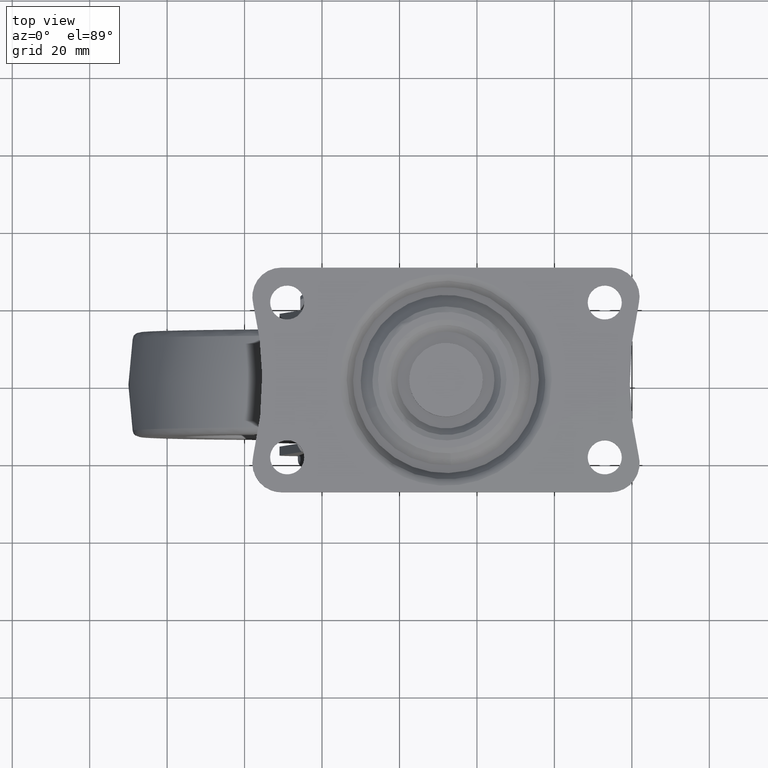
[diagram: clean part render]
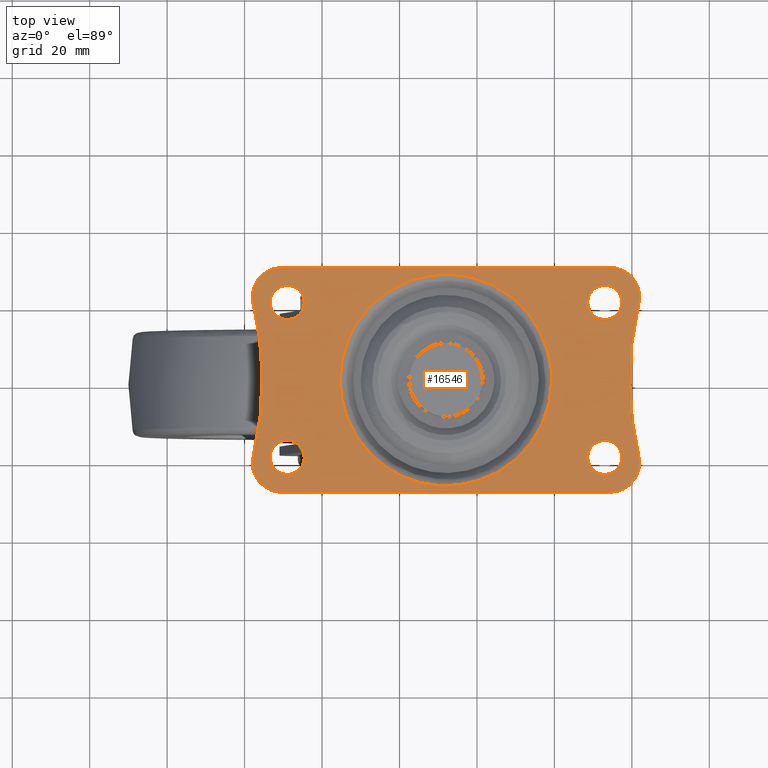
[diagram: same view with one face highlighted and labeled with its STEP entity id]
A machine part, top view. The second image highlights one B-rep face of the part: STEP entity #16546.
In plain terms, the highlighted face is a freeform B-spline surface patch.
Its self-contained STEP definition (entity closure, byte-faithful):
#12485=CARTESIAN_POINT('',(-9.345220021310645,-24.386436268417238,71.999999999999986));
#12486=VERTEX_POINT('',#12485);
#12492=CARTESIAN_POINT('',(-4.599999999999800,-20.0,72.0));
#12493=VERTEX_POINT('',#12492);
#12494=CARTESIAN_POINT('',(-9.345220021310645,-24.386436268417238,71.999999999999986));
#12495=CARTESIAN_POINT('',(-9.172876470942377,-24.400000000000006,72.000000000000014));
#12496=CARTESIAN_POINT('',(-8.999999999999799,-24.399999999999999,72.0));
#12497=CARTESIAN_POINT('',(-4.599999999999800,-24.400000000000002,72.0));
#12498=CARTESIAN_POINT('',(-4.599999999999800,-20.0,72.0));
#12506=(BOUNDED_CURVE()B_SPLINE_CURVE(2,(#12494,#12495,#12496,#12497,#12498),.UNSPECIFIED.,.F.,.U.)B_SPLINE_CURVE_WITH_KNOTS((3,2,3),(0.736331300624300,0.750000000000000,1.0),.UNSPECIFIED.)CURVE()GEOMETRIC_REPRESENTATION_ITEM()RATIONAL_B_SPLINE_CURVE((0.969723356154145,0.983986122571431,1.0,0.707106781186548,1.0))REPRESENTATION_ITEM(''));
#12507=EDGE_CURVE('',#12486,#12493,#12506,.T.);
#12509=CARTESIAN_POINT('',(-8.654779978688953,-15.613563731582760,72.0));
#12510=VERTEX_POINT('',#12509);
#12511=CARTESIAN_POINT('',(-4.599999999999800,-20.0,72.0));
#12512=CARTESIAN_POINT('',(-4.599999999999800,-15.932681836905394,72.0));
#12513=CARTESIAN_POINT('',(-8.654779978688953,-15.613563731582767,72.0));
#12521=(BOUNDED_CURVE()B_SPLINE_CURVE(2,(#12511,#12512,#12513),.UNSPECIFIED.,.F.,.U.)B_SPLINE_CURVE_WITH_KNOTS((3,3),(0.0,0.236331300624300),.UNSPECIFIED.)CURVE()GEOMETRIC_REPRESENTATION_ITEM()RATIONAL_B_SPLINE_CURVE((1.0,0.723120658615116,0.969723356154146))REPRESENTATION_ITEM(''));
#12522=EDGE_CURVE('',#12493,#12510,#12521,.T.);
#12568=CARTESIAN_POINT('',(-13.399999999999800,-20.0,72.0));
#12569=VERTEX_POINT('',#12568);
#12570=CARTESIAN_POINT('',(-8.654779978688953,-15.613563731582762,72.0));
#12571=CARTESIAN_POINT('',(-8.827123529057223,-15.600000000000005,72.0));
#12572=CARTESIAN_POINT('',(-8.999999999999799,-15.600000000000000,72.0));
#12573=CARTESIAN_POINT('',(-13.399999999999801,-15.599999999999996,72.0));
#12574=CARTESIAN_POINT('',(-13.399999999999800,-20.0,72.0));
#12582=(BOUNDED_CURVE()B_SPLINE_CURVE(2,(#12570,#12571,#12572,#12573,#12574),.UNSPECIFIED.,.F.,.U.)B_SPLINE_CURVE_WITH_KNOTS((3,2,3),(0.236331300624300,0.250000000000000,0.500000000000000),.UNSPECIFIED.)CURVE()GEOMETRIC_REPRESENTATION_ITEM()RATIONAL_B_SPLINE_CURVE((0.969723356154146,0.983986122571431,1.0,0.707106781186548,1.0))REPRESENTATION_ITEM(''));
#12583=EDGE_CURVE('',#12510,#12569,#12582,.T.);
#12585=CARTESIAN_POINT('',(-13.399999999999800,-20.0,72.0));
#12586=CARTESIAN_POINT('',(-13.399999999999801,-24.067318163094594,72.0));
#12587=CARTESIAN_POINT('',(-9.345220021310645,-24.386436268417242,71.999999999999986));
#12595=(BOUNDED_CURVE()B_SPLINE_CURVE(2,(#12585,#12586,#12587),.UNSPECIFIED.,.F.,.U.)B_SPLINE_CURVE_WITH_KNOTS((3,3),(0.500000000000000,0.736331300624300),.UNSPECIFIED.)CURVE()GEOMETRIC_REPRESENTATION_ITEM()RATIONAL_B_SPLINE_CURVE((1.0,0.723120658615117,0.969723356154145))REPRESENTATION_ITEM(''));
#12596=EDGE_CURVE('',#12569,#12486,#12595,.T.);
#12667=CARTESIAN_POINT('',(72.654779978689163,-24.386436268417238,72.0));
#12668=VERTEX_POINT('',#12667);
#12674=CARTESIAN_POINT('',(77.399999999999991,-20.0,72.0));
#12675=VERTEX_POINT('',#12674);
#12676=CARTESIAN_POINT('',(72.654779978689163,-24.386436268417235,72.0));
#12677=CARTESIAN_POINT('',(72.827123529057431,-24.400000000000006,72.0));
#12678=CARTESIAN_POINT('',(73.0,-24.399999999999999,72.0));
#12679=CARTESIAN_POINT('',(77.399999999999991,-24.400000000000002,72.0));
#12680=CARTESIAN_POINT('',(77.399999999999991,-20.0,72.0));
#12688=(BOUNDED_CURVE()B_SPLINE_CURVE(2,(#12676,#12677,#12678,#12679,#12680),.UNSPECIFIED.,.F.,.U.)B_SPLINE_CURVE_WITH_KNOTS((3,2,3),(0.736331300624300,0.750000000000000,1.0),.UNSPECIFIED.)CURVE()GEOMETRIC_REPRESENTATION_ITEM()RATIONAL_B_SPLINE_CURVE((0.969723356154147,0.983986122571432,1.0,0.707106781186548,1.0))REPRESENTATION_ITEM(''));
#12689=EDGE_CURVE('',#12668,#12675,#12688,.T.);
#12691=CARTESIAN_POINT('',(73.345220021310837,-15.613563731582760,72.0));
#12692=VERTEX_POINT('',#12691);
#12693=CARTESIAN_POINT('',(77.399999999999991,-20.0,72.0));
#12694=CARTESIAN_POINT('',(77.399999999999991,-15.932681836905395,72.000000000000014));
#12695=CARTESIAN_POINT('',(73.345220021310837,-15.613563731582765,72.0));
#12703=(BOUNDED_CURVE()B_SPLINE_CURVE(2,(#12693,#12694,#12695),.UNSPECIFIED.,.F.,.U.)B_SPLINE_CURVE_WITH_KNOTS((3,3),(0.0,0.236331300624300),.UNSPECIFIED.)CURVE()GEOMETRIC_REPRESENTATION_ITEM()RATIONAL_B_SPLINE_CURVE((1.0,0.723120658615116,0.969723356154146))REPRESENTATION_ITEM(''));
#12704=EDGE_CURVE('',#12675,#12692,#12703,.T.);
#12750=CARTESIAN_POINT('',(68.599999999999994,-20.0,72.0));
#12751=VERTEX_POINT('',#12750);
#12752=CARTESIAN_POINT('',(73.345220021310837,-15.613563731582763,72.0));
#12753=CARTESIAN_POINT('',(73.172876470942569,-15.600000000000001,72.0));
#12754=CARTESIAN_POINT('',(73.0,-15.600000000000000,72.0));
#12755=CARTESIAN_POINT('',(68.599999999999994,-15.599999999999996,72.0));
#12756=CARTESIAN_POINT('',(68.599999999999994,-20.0,72.0));
#12764=(BOUNDED_CURVE()B_SPLINE_CURVE(2,(#12752,#12753,#12754,#12755,#12756),.UNSPECIFIED.,.F.,.U.)B_SPLINE_CURVE_WITH_KNOTS((3,2,3),(0.236331300624300,0.250000000000000,0.500000000000000),.UNSPECIFIED.)CURVE()GEOMETRIC_REPRESENTATION_ITEM()RATIONAL_B_SPLINE_CURVE((0.969723356154146,0.983986122571431,1.0,0.707106781186548,1.0))REPRESENTATION_ITEM(''));
#12765=EDGE_CURVE('',#12692,#12751,#12764,.T.);
#12767=CARTESIAN_POINT('',(68.599999999999994,-20.0,72.0));
#12768=CARTESIAN_POINT('',(68.599999999999980,-24.067318163094594,72.0));
#12769=CARTESIAN_POINT('',(72.654779978689163,-24.386436268417231,72.0));
#12777=(BOUNDED_CURVE()B_SPLINE_CURVE(2,(#12767,#12768,#12769),.UNSPECIFIED.,.F.,.U.)B_SPLINE_CURVE_WITH_KNOTS((3,3),(0.500000000000000,0.736331300624300),.UNSPECIFIED.)CURVE()GEOMETRIC_REPRESENTATION_ITEM()RATIONAL_B_SPLINE_CURVE((1.0,0.723120658615117,0.969723356154145))REPRESENTATION_ITEM(''));
#12778=EDGE_CURVE('',#12751,#12668,#12777,.T.);
#12849=CARTESIAN_POINT('',(-9.345220021310643,15.613563731582760,72.0));
#12850=VERTEX_POINT('',#12849);
#12856=CARTESIAN_POINT('',(-4.599999999999800,20.0,72.0));
#12857=VERTEX_POINT('',#12856);
#12858=CARTESIAN_POINT('',(-9.345220021310643,15.613563731582756,72.0));
#12859=CARTESIAN_POINT('',(-9.172876470942374,15.600000000000003,72.0));
#12860=CARTESIAN_POINT('',(-8.999999999999799,15.600000000000000,72.0));
#12861=CARTESIAN_POINT('',(-4.599999999999800,15.599999999999996,72.0));
#12862=CARTESIAN_POINT('',(-4.599999999999800,20.0,72.0));
#12870=(BOUNDED_CURVE()B_SPLINE_CURVE(2,(#12858,#12859,#12860,#12861,#12862),.UNSPECIFIED.,.F.,.U.)B_SPLINE_CURVE_WITH_KNOTS((3,2,3),(0.736331300624300,0.750000000000000,1.0),.UNSPECIFIED.)CURVE()GEOMETRIC_REPRESENTATION_ITEM()RATIONAL_B_SPLINE_CURVE((0.969723356154146,0.983986122571431,1.0,0.707106781186548,1.0))REPRESENTATION_ITEM(''));
#12871=EDGE_CURVE('',#12850,#12857,#12870,.T.);
#12873=CARTESIAN_POINT('',(-8.654779978688953,24.386436268417238,72.0));
#12874=VERTEX_POINT('',#12873);
#12875=CARTESIAN_POINT('',(-4.599999999999800,20.0,72.0));
#12876=CARTESIAN_POINT('',(-4.599999999999800,24.067318163094598,72.0));
#12877=CARTESIAN_POINT('',(-8.654779978688953,24.386436268417235,72.0));
#12885=(BOUNDED_CURVE()B_SPLINE_CURVE(2,(#12875,#12876,#12877),.UNSPECIFIED.,.F.,.U.)B_SPLINE_CURVE_WITH_KNOTS((3,3),(0.0,0.236331300624300),.UNSPECIFIED.)CURVE()GEOMETRIC_REPRESENTATION_ITEM()RATIONAL_B_SPLINE_CURVE((1.0,0.723120658615116,0.969723356154146))REPRESENTATION_ITEM(''));
#12886=EDGE_CURVE('',#12857,#12874,#12885,.T.);
#12932=CARTESIAN_POINT('',(-13.399999999999800,20.0,72.0));
#12933=VERTEX_POINT('',#12932);
#12934=CARTESIAN_POINT('',(-8.654779978688953,24.386436268417235,72.0));
#12935=CARTESIAN_POINT('',(-8.827123529057221,24.400000000000002,72.0));
#12936=CARTESIAN_POINT('',(-8.999999999999799,24.399999999999999,72.0));
#12937=CARTESIAN_POINT('',(-13.399999999999801,24.400000000000002,72.0));
#12938=CARTESIAN_POINT('',(-13.399999999999800,20.0,72.0));
#12946=(BOUNDED_CURVE()B_SPLINE_CURVE(2,(#12934,#12935,#12936,#12937,#12938),.UNSPECIFIED.,.F.,.U.)B_SPLINE_CURVE_WITH_KNOTS((3,2,3),(0.236331300624300,0.250000000000000,0.500000000000000),.UNSPECIFIED.)CURVE()GEOMETRIC_REPRESENTATION_ITEM()RATIONAL_B_SPLINE_CURVE((0.969723356154146,0.983986122571431,1.0,0.707106781186548,1.0))REPRESENTATION_ITEM(''));
#12947=EDGE_CURVE('',#12874,#12933,#12946,.T.);
#12949=CARTESIAN_POINT('',(-13.399999999999800,20.0,72.0));
#12950=CARTESIAN_POINT('',(-13.399999999999801,15.932681836905406,72.0));
#12951=CARTESIAN_POINT('',(-9.345220021310643,15.613563731582765,72.0));
#12959=(BOUNDED_CURVE()B_SPLINE_CURVE(2,(#12949,#12950,#12951),.UNSPECIFIED.,.F.,.U.)B_SPLINE_CURVE_WITH_KNOTS((3,3),(0.500000000000000,0.736331300624300),.UNSPECIFIED.)CURVE()GEOMETRIC_REPRESENTATION_ITEM()RATIONAL_B_SPLINE_CURVE((1.0,0.723120658615117,0.969723356154145))REPRESENTATION_ITEM(''));
#12960=EDGE_CURVE('',#12933,#12850,#12959,.T.);
#13031=CARTESIAN_POINT('',(72.654779978689163,15.613563731582760,72.0));
#13032=VERTEX_POINT('',#13031);
#13038=CARTESIAN_POINT('',(77.399999999999991,20.0,72.0));
#13039=VERTEX_POINT('',#13038);
#13040=CARTESIAN_POINT('',(72.654779978689163,15.613563731582767,72.0));
#13041=CARTESIAN_POINT('',(72.827123529057431,15.599999999999996,72.0));
#13042=CARTESIAN_POINT('',(73.0,15.600000000000000,72.0));
#13043=CARTESIAN_POINT('',(77.399999999999991,15.599999999999996,72.0));
#13044=CARTESIAN_POINT('',(77.399999999999991,20.0,72.0));
#13052=(BOUNDED_CURVE()B_SPLINE_CURVE(2,(#13040,#13041,#13042,#13043,#13044),.UNSPECIFIED.,.F.,.U.)B_SPLINE_CURVE_WITH_KNOTS((3,2,3),(0.736331300624300,0.750000000000000,1.0),.UNSPECIFIED.)CURVE()GEOMETRIC_REPRESENTATION_ITEM()RATIONAL_B_SPLINE_CURVE((0.969723356154147,0.983986122571432,1.0,0.707106781186548,1.0))REPRESENTATION_ITEM(''));
#13053=EDGE_CURVE('',#13032,#13039,#13052,.T.);
#13055=CARTESIAN_POINT('',(73.345220021310851,24.386436268417238,72.0));
#13056=VERTEX_POINT('',#13055);
#13057=CARTESIAN_POINT('',(77.399999999999991,20.0,72.0));
#13058=CARTESIAN_POINT('',(77.399999999999991,24.067318163094601,72.0));
#13059=CARTESIAN_POINT('',(73.345220021310851,24.386436268417238,72.0));
#13067=(BOUNDED_CURVE()B_SPLINE_CURVE(2,(#13057,#13058,#13059),.UNSPECIFIED.,.F.,.U.)B_SPLINE_CURVE_WITH_KNOTS((3,3),(0.0,0.236331300624300),.UNSPECIFIED.)CURVE()GEOMETRIC_REPRESENTATION_ITEM()RATIONAL_B_SPLINE_CURVE((1.0,0.723120658615116,0.969723356154146))REPRESENTATION_ITEM(''));
#13068=EDGE_CURVE('',#13039,#13056,#13067,.T.);
#13114=CARTESIAN_POINT('',(68.599999999999994,20.0,72.0));
#13115=VERTEX_POINT('',#13114);
#13116=CARTESIAN_POINT('',(73.345220021310851,24.386436268417238,72.0));
#13117=CARTESIAN_POINT('',(73.172876470942583,24.400000000000009,72.0));
#13118=CARTESIAN_POINT('',(73.0,24.399999999999999,72.0));
#13119=CARTESIAN_POINT('',(68.599999999999994,24.400000000000002,72.0));
#13120=CARTESIAN_POINT('',(68.599999999999994,20.0,72.0));
#13128=(BOUNDED_CURVE()B_SPLINE_CURVE(2,(#13116,#13117,#13118,#13119,#13120),.UNSPECIFIED.,.F.,.U.)B_SPLINE_CURVE_WITH_KNOTS((3,2,3),(0.236331300624300,0.250000000000000,0.500000000000000),.UNSPECIFIED.)CURVE()GEOMETRIC_REPRESENTATION_ITEM()RATIONAL_B_SPLINE_CURVE((0.969723356154146,0.983986122571431,1.0,0.707106781186548,1.0))REPRESENTATION_ITEM(''));
#13129=EDGE_CURVE('',#13056,#13115,#13128,.T.);
#13131=CARTESIAN_POINT('',(68.599999999999994,20.0,72.0));
#13132=CARTESIAN_POINT('',(68.599999999999980,15.932681836905406,72.0));
#13133=CARTESIAN_POINT('',(72.654779978689163,15.613563731582765,72.0));
#13141=(BOUNDED_CURVE()B_SPLINE_CURVE(2,(#13131,#13132,#13133),.UNSPECIFIED.,.F.,.U.)B_SPLINE_CURVE_WITH_KNOTS((3,3),(0.500000000000000,0.736331300624300),.UNSPECIFIED.)CURVE()GEOMETRIC_REPRESENTATION_ITEM()RATIONAL_B_SPLINE_CURVE((1.0,0.723120658615117,0.969723356154145))REPRESENTATION_ITEM(''));
#13142=EDGE_CURVE('',#13115,#13032,#13141,.T.);
#14025=CARTESIAN_POINT('',(17.354768338814399,-23.077192448521050,72.0));
#14026=VERTEX_POINT('',#14025);
#14040=CARTESIAN_POINT('',(59.332025576020200,0.0,72.0));
#14041=VERTEX_POINT('',#14040);
#14042=CARTESIAN_POINT('',(59.332025576020200,0.0,72.0));
#14043=CARTESIAN_POINT('',(59.332025576020193,-27.332025576020207,72.0));
#14044=CARTESIAN_POINT('',(32.0,-27.332025576020200,72.0));
#14045=CARTESIAN_POINT('',(24.059312521086532,-27.332025576020200,72.0));
#14046=CARTESIAN_POINT('',(17.354768338814402,-23.077192448521053,72.000000000000014));
#14054=(BOUNDED_CURVE()B_SPLINE_CURVE(2,(#14042,#14043,#14044,#14045,#14046),.UNSPECIFIED.,.F.,.U.)B_SPLINE_CURVE_WITH_KNOTS((3,2,3),(0.0,0.250000000000000,0.341683542670410),.UNSPECIFIED.)CURVE()GEOMETRIC_REPRESENTATION_ITEM()RATIONAL_B_SPLINE_CURVE((1.0,0.707106781186547,1.0,0.892586048300173,0.863956829592893))REPRESENTATION_ITEM(''));
#14055=EDGE_CURVE('',#14041,#14026,#14054,.T.);
#14057=CARTESIAN_POINT('',(8.922807551286528,14.645231661301169,72.0));
#14058=VERTEX_POINT('',#14057);
#14059=CARTESIAN_POINT('',(8.922807551286528,14.645231661301171,72.0));
#14060=CARTESIAN_POINT('',(16.974091785959267,27.332025576020200,71.999999999999986));
#14061=CARTESIAN_POINT('',(32.0,27.332025576020200,72.0));
#14062=CARTESIAN_POINT('',(59.332025576020193,27.332025576020207,72.0));
#14063=CARTESIAN_POINT('',(59.332025576020200,0.0,72.0));
#14071=(BOUNDED_CURVE()B_SPLINE_CURVE(2,(#14059,#14060,#14061,#14062,#14063),.UNSPECIFIED.,.F.,.U.)B_SPLINE_CURVE_WITH_KNOTS((3,2,3),(0.591683542670348,0.750000000000000,1.0),.UNSPECIFIED.)CURVE()GEOMETRIC_REPRESENTATION_ITEM()RATIONAL_B_SPLINE_CURVE((0.863956829592931,0.814520732886303,1.0,0.707106781186547,1.0))REPRESENTATION_ITEM(''));
#14072=EDGE_CURVE('',#14058,#14041,#14071,.T.);
#14113=CARTESIAN_POINT('',(4.667974423979801,0.0,72.0));
#14114=VERTEX_POINT('',#14113);
#14115=CARTESIAN_POINT('',(4.667974423979801,0.0,72.0));
#14116=CARTESIAN_POINT('',(4.667974423979801,7.940687478907560,72.0));
#14117=CARTESIAN_POINT('',(8.922807551286530,14.645231661301167,72.0));
#14125=(BOUNDED_CURVE()B_SPLINE_CURVE(2,(#14115,#14116,#14117),.UNSPECIFIED.,.F.,.U.)B_SPLINE_CURVE_WITH_KNOTS((3,3),(0.500000000000000,0.591683542670349),.UNSPECIFIED.)CURVE()GEOMETRIC_REPRESENTATION_ITEM()RATIONAL_B_SPLINE_CURVE((1.0,0.892586048300244,0.863956829592931))REPRESENTATION_ITEM(''));
#14126=EDGE_CURVE('',#14114,#14058,#14125,.T.);
#14128=CARTESIAN_POINT('',(17.354768338814402,-23.077192448521053,72.000000000000014));
#14129=CARTESIAN_POINT('',(4.667974423979801,-15.025908214033542,72.0));
#14130=CARTESIAN_POINT('',(4.667974423979801,0.0,72.0));
#14138=(BOUNDED_CURVE()B_SPLINE_CURVE(2,(#14128,#14129,#14130),.UNSPECIFIED.,.F.,.U.)B_SPLINE_CURVE_WITH_KNOTS((3,3),(0.341683542670410,0.500000000000000),.UNSPECIFIED.)CURVE()GEOMETRIC_REPRESENTATION_ITEM()RATIONAL_B_SPLINE_CURVE((0.863956829592893,0.814520732886375,1.0))REPRESENTATION_ITEM(''));
#14139=EDGE_CURVE('',#14026,#14114,#14138,.T.);
#16061=CARTESIAN_POINT('',(-10.499999999999799,29.0,72.0));
#16062=VERTEX_POINT('',#16061);
#16068=CARTESIAN_POINT('',(74.500002356194614,29.0,72.0));
#16069=VERTEX_POINT('',#16068);
#16070=CARTESIAN_POINT('',(74.500002356194614,29.0,72.0));
#16071=CARTESIAN_POINT('',(-10.499999999999799,29.0,72.0));
#16072=QUASI_UNIFORM_CURVE('',1,(#16070,#16071),.UNSPECIFIED.,.F.,.U.);
#16073=EDGE_CURVE('',#16069,#16062,#16072,.T.);
#16115=CARTESIAN_POINT('',(81.794593626771203,19.756756858867799,72.0));
#16116=VERTEX_POINT('',#16115);
#16117=CARTESIAN_POINT('',(81.794593626771203,19.756756858867799,72.0));
#16118=CARTESIAN_POINT('',(82.639566933515169,23.292542066994866,71.999999999999986));
#16119=CARTESIAN_POINT('',(80.387458771803821,26.146270462458052,72.0));
#16120=CARTESIAN_POINT('',(78.135350610092502,28.999998857921238,71.999999999999986));
#16121=CARTESIAN_POINT('',(74.500002356194614,29.0,72.0));
#16129=(BOUNDED_CURVE()B_SPLINE_CURVE(2,(#16117,#16118,#16119,#16120,#16121),.UNSPECIFIED.,.F.,.U.)B_SPLINE_CURVE_WITH_KNOTS((3,2,3),(0.0,0.500000000000000,1.0),.UNSPECIFIED.)CURVE()GEOMETRIC_REPRESENTATION_ITEM()RATIONAL_B_SPLINE_CURVE((1.0,0.899861926892403,1.0,0.899861926892403,1.0))REPRESENTATION_ITEM(''));
#16130=EDGE_CURVE('',#16116,#16069,#16129,.T.);
#16170=CARTESIAN_POINT('',(81.794594091755599,-19.756756747746952,72.0));
#16171=VERTEX_POINT('',#16170);
#16172=CARTESIAN_POINT('',(81.794593626771203,19.756756858867799,72.0));
#16173=CARTESIAN_POINT('',(77.073174909374345,6.311618E-014,72.0));
#16174=CARTESIAN_POINT('',(81.794594091755599,-19.756756747746952,72.0));
#16182=(BOUNDED_CURVE()B_SPLINE_CURVE(2,(#16172,#16173,#16174),.UNSPECIFIED.,.F.,.U.)CURVE()GEOMETRIC_REPRESENTATION_ITEM()QUASI_UNIFORM_CURVE()RATIONAL_B_SPLINE_CURVE((1.0,0.972612545567400,1.0))REPRESENTATION_ITEM(''));
#16183=EDGE_CURVE('',#16116,#16171,#16182,.T.);
#16225=CARTESIAN_POINT('',(74.500000000000000,-29.0,72.0));
#16226=VERTEX_POINT('',#16225);
#16227=CARTESIAN_POINT('',(74.500000000000000,-29.0,72.0));
#16228=CARTESIAN_POINT('',(78.135348981341849,-28.999999999999993,72.0));
#16229=CARTESIAN_POINT('',(80.387458041969282,-26.146271387257869,72.0));
#16230=CARTESIAN_POINT('',(82.639567102596700,-23.292542774515727,72.0));
#16231=CARTESIAN_POINT('',(81.794594091755499,-19.756756747746980,72.0));
#16239=(BOUNDED_CURVE()B_SPLINE_CURVE(2,(#16227,#16228,#16229,#16230,#16231),.UNSPECIFIED.,.F.,.U.)B_SPLINE_CURVE_WITH_KNOTS((3,2,3),(0.0,0.500000000000000,1.0),.UNSPECIFIED.)CURVE()GEOMETRIC_REPRESENTATION_ITEM()RATIONAL_B_SPLINE_CURVE((1.0,0.899861892635304,1.0,0.899861892635304,1.0))REPRESENTATION_ITEM(''));
#16240=EDGE_CURVE('',#16226,#16171,#16239,.T.);
#16263=CARTESIAN_POINT('',(-10.500006544984499,-28.999999999997151,72.0));
#16264=VERTEX_POINT('',#16263);
#16265=CARTESIAN_POINT('',(-10.500006544984499,-28.999999999997151,72.0));
#16266=CARTESIAN_POINT('',(74.500000000000000,-29.0,72.0));
#16267=QUASI_UNIFORM_CURVE('',1,(#16265,#16266),.UNSPECIFIED.,.F.,.U.);
#16268=EDGE_CURVE('',#16264,#16226,#16267,.T.);
#16310=CARTESIAN_POINT('',(-17.794593039822651,-19.756754402785550,72.0));
#16311=VERTEX_POINT('',#16310);
#16312=CARTESIAN_POINT('',(-17.794593039822651,-19.756754402785550,72.0));
#16313=CARTESIAN_POINT('',(-18.639567417684560,-23.292538826878797,72.0));
#16314=CARTESIAN_POINT('',(-16.387460851483770,-26.146267827218281,72.0));
#16315=CARTESIAN_POINT('',(-14.135354285282983,-28.999996827557759,72.0));
#16316=CARTESIAN_POINT('',(-10.500006544984499,-28.999999999997140,72.0));
#16324=(BOUNDED_CURVE()B_SPLINE_CURVE(2,(#16312,#16313,#16314,#16315,#16316),.UNSPECIFIED.,.F.,.U.)B_SPLINE_CURVE_WITH_KNOTS((3,2,3),(0.0,0.500000000000000,1.0),.UNSPECIFIED.)CURVE()GEOMETRIC_REPRESENTATION_ITEM()RATIONAL_B_SPLINE_CURVE((1.0,0.899861951078992,1.0,0.899861951078992,1.0))REPRESENTATION_ITEM(''));
#16325=EDGE_CURVE('',#16311,#16264,#16324,.T.);
#16365=CARTESIAN_POINT('',(-17.794593384643100,19.756755845685351,72.0));
#16366=VERTEX_POINT('',#16365);
#16367=CARTESIAN_POINT('',(-17.794593039822661,-19.756754402785550,72.0));
#16368=CARTESIAN_POINT('',(-13.073175347586464,0.000000762652039,72.0));
#16369=CARTESIAN_POINT('',(-17.794593384643079,19.756755845685309,72.0));
#16377=(BOUNDED_CURVE()B_SPLINE_CURVE(2,(#16367,#16368,#16369),.UNSPECIFIED.,.F.,.U.)CURVE()GEOMETRIC_REPRESENTATION_ITEM()QUASI_UNIFORM_CURVE()RATIONAL_B_SPLINE_CURVE((1.0,0.972612550444317,1.0))REPRESENTATION_ITEM(''));
#16378=EDGE_CURVE('',#16311,#16366,#16377,.T.);
#16418=CARTESIAN_POINT('',(-10.499999999999799,29.0,72.0));
#16419=CARTESIAN_POINT('',(-14.135349302956516,28.999999999999989,72.0));
#16420=CARTESIAN_POINT('',(-16.387458364640949,26.146270978388682,72.0));
#16421=CARTESIAN_POINT('',(-18.639567426325396,23.292541956777363,72.0));
#16422=CARTESIAN_POINT('',(-17.794593384643100,19.756755845685351,72.0));
#16430=(BOUNDED_CURVE()B_SPLINE_CURVE(2,(#16418,#16419,#16420,#16421,#16422),.UNSPECIFIED.,.F.,.U.)B_SPLINE_CURVE_WITH_KNOTS((3,2,3),(0.0,0.500000000000000,1.0),.UNSPECIFIED.)CURVE()GEOMETRIC_REPRESENTATION_ITEM()RATIONAL_B_SPLINE_CURVE((1.0,0.899861877489677,1.0,0.899861877489677,1.0))REPRESENTATION_ITEM(''));
#16431=EDGE_CURVE('',#16062,#16366,#16430,.T.);
#16501=CARTESIAN_POINT('',(-22.994844749110602,-31.897099887584741,72.0));
#16502=CARTESIAN_POINT('',(86.994837801469615,-31.897099887584741,72.0));
#16503=CARTESIAN_POINT('',(-22.994844749110602,31.897101443265981,72.0));
#16504=CARTESIAN_POINT('',(86.994837801469615,31.897101443265981,72.0));
#16505=B_SPLINE_SURFACE_WITH_KNOTS('',1,1,((#16501,#16503),(#16502,#16504)),.UNSPECIFIED.,.F.,.F.,.U.,(2,2),(2,2),(0.0,109.989682550580200),(0.0,63.794201330850733),.UNSPECIFIED.);
#16506=ORIENTED_EDGE('',*,*,#16431,.T.);
#16507=ORIENTED_EDGE('',*,*,#16378,.F.);
#16508=ORIENTED_EDGE('',*,*,#16325,.T.);
#16509=ORIENTED_EDGE('',*,*,#16268,.T.);
#16510=ORIENTED_EDGE('',*,*,#16240,.T.);
#16511=ORIENTED_EDGE('',*,*,#16183,.F.);
#16512=ORIENTED_EDGE('',*,*,#16130,.T.);
#16513=ORIENTED_EDGE('',*,*,#16073,.T.);
#16514=EDGE_LOOP('',(#16506,#16507,#16508,#16509,#16510,#16511,#16512,#16513));
#16515=FACE_OUTER_BOUND('',#16514,.T.);
#16516=ORIENTED_EDGE('',*,*,#14126,.T.);
#16517=ORIENTED_EDGE('',*,*,#14072,.T.);
#16518=ORIENTED_EDGE('',*,*,#14055,.T.);
#16519=ORIENTED_EDGE('',*,*,#14139,.T.);
#16520=EDGE_LOOP('',(#16516,#16517,#16518,#16519));
#16521=FACE_BOUND('',#16520,.T.);
#16522=ORIENTED_EDGE('',*,*,#13142,.F.);
#16523=ORIENTED_EDGE('',*,*,#13129,.F.);
#16524=ORIENTED_EDGE('',*,*,#13068,.F.);
#16525=ORIENTED_EDGE('',*,*,#13053,.F.);
#16526=EDGE_LOOP('',(#16522,#16523,#16524,#16525));
#16527=FACE_BOUND('',#16526,.T.);
#16528=ORIENTED_EDGE('',*,*,#12960,.F.);
#16529=ORIENTED_EDGE('',*,*,#12947,.F.);
#16530=ORIENTED_EDGE('',*,*,#12886,.F.);
#16531=ORIENTED_EDGE('',*,*,#12871,.F.);
#16532=EDGE_LOOP('',(#16528,#16529,#16530,#16531));
#16533=FACE_BOUND('',#16532,.T.);
#16534=ORIENTED_EDGE('',*,*,#12778,.F.);
#16535=ORIENTED_EDGE('',*,*,#12765,.F.);
#16536=ORIENTED_EDGE('',*,*,#12704,.F.);
#16537=ORIENTED_EDGE('',*,*,#12689,.F.);
#16538=EDGE_LOOP('',(#16534,#16535,#16536,#16537));
#16539=FACE_BOUND('',#16538,.T.);
#16540=ORIENTED_EDGE('',*,*,#12596,.F.);
#16541=ORIENTED_EDGE('',*,*,#12583,.F.);
#16542=ORIENTED_EDGE('',*,*,#12522,.F.);
#16543=ORIENTED_EDGE('',*,*,#12507,.F.);
#16544=EDGE_LOOP('',(#16540,#16541,#16542,#16543));
#16545=FACE_BOUND('',#16544,.T.);
#16546=ADVANCED_FACE('',(#16515,#16521,#16527,#16533,#16539,#16545),#16505,.T.);